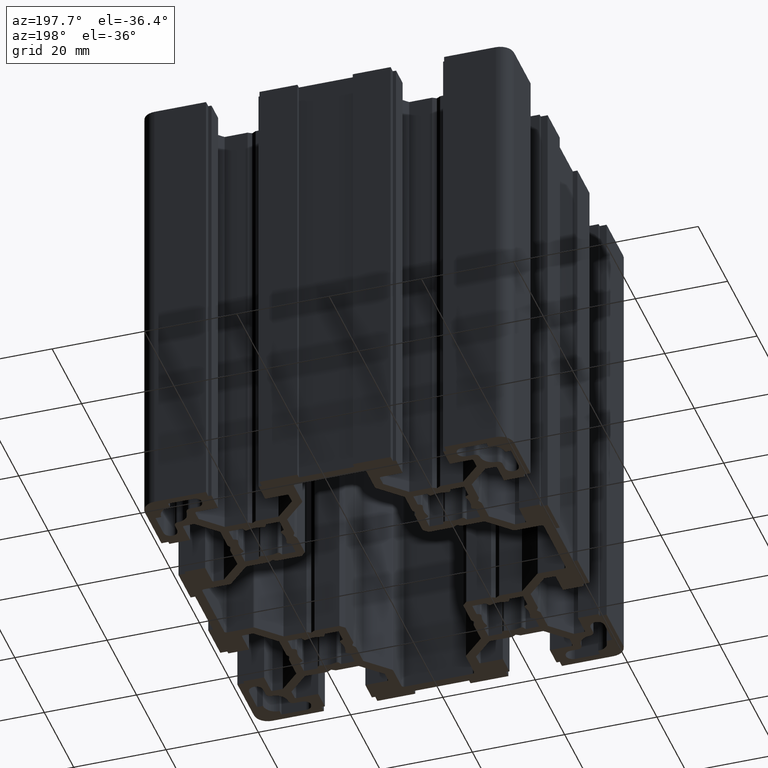
[diagram: clean part render]
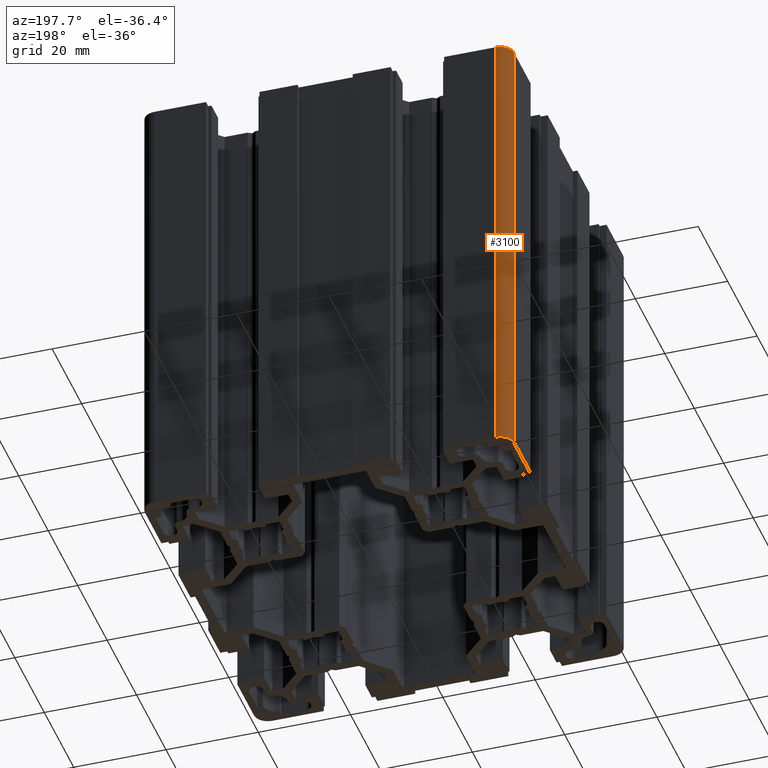
[diagram: same view with one face highlighted and labeled with its STEP entity id]
A machine part, auxiliary view. The second image highlights one B-rep face of the part: STEP entity #3100.
In plain terms, the highlighted cylindrical surface (edge-blend (fillet) strip) has radius 3 mm, axis along (-0, -0, -1).
Its self-contained STEP definition (entity closure, byte-faithful):
#406 = CARTESIAN_POINT ( 'NONE',  ( -36.99999974236035900, 37.00000000000000000, 0.0000000000000000000 ) ) ;
#412 = CIRCLE ( 'NONE', #416, 3.000000000000002700 ) ;
#416 = AXIS2_PLACEMENT_3D ( 'NONE', #406, #13815, #13779 ) ;
#1367 = CARTESIAN_POINT ( 'NONE',  ( -36.99999974236035900, 40.00000000000000000, 100.0000000000000000 ) ) ;
#1429 = DIRECTION ( 'NONE',  ( 1.000000000000000000, 0.0000000000000000000, 0.0000000000000000000 ) ) ;
#1430 = DIRECTION ( 'NONE',  ( 0.0000000000000000000, 0.0000000000000000000, 1.000000000000000000 ) ) ;
#1431 = CARTESIAN_POINT ( 'NONE',  ( -36.99999974236035900, 37.00000000000000000, 100.0000000000000000 ) ) ;
#1432 = AXIS2_PLACEMENT_3D ( 'NONE', #1431, #1430, #1429 ) ;
#1433 = CIRCLE ( 'NONE', #1432, 3.000000000000002700 ) ;
#1475 = CARTESIAN_POINT ( 'NONE',  ( -39.99999974236035900, 37.00000000000000000, 100.0000000000000000 ) ) ;
#2050 = CARTESIAN_POINT ( 'NONE',  ( -39.99999974236035900, 37.00000000000000000, 0.0000000000000000000 ) ) ;
#2103 = CARTESIAN_POINT ( 'NONE',  ( -36.99999974236035900, 40.00000000000000000, 0.0000000000000000000 ) ) ;
#3100 = ADVANCED_FACE ( 'NONE', ( #9279 ), #9256, .T. ) ;
#3101 = EDGE_CURVE ( 'NONE', #7077, #12295, #9305, .T. ) ;
#3103 = ORIENTED_EDGE ( 'NONE', *, *, #7124, .F. ) ;
#3105 = ORIENTED_EDGE ( 'NONE', *, *, #3101, .T. ) ;
#3111 = ORIENTED_EDGE ( 'NONE', *, *, #3119, .F. ) ;
#3117 = ORIENTED_EDGE ( 'NONE', *, *, #6583, .T. ) ;
#3119 = EDGE_CURVE ( 'NONE', #7135, #12275, #9337, .T. ) ;
#3132 = EDGE_LOOP ( 'NONE', ( #3117, #3111, #3103, #3105 ) ) ;
#6583 = EDGE_CURVE ( 'NONE', #12295, #12275, #412, .T. ) ;
#7077 = VERTEX_POINT ( 'NONE', #1367 ) ;
#7124 = EDGE_CURVE ( 'NONE', #7077, #7135, #1433, .T. ) ;
#7135 = VERTEX_POINT ( 'NONE', #1475 ) ;
#9256 = CYLINDRICAL_SURFACE ( 'NONE', #9262, 3.000000000000002700 ) ;
#9262 = AXIS2_PLACEMENT_3D ( 'NONE', #9309, #9308, #9307 ) ;
#9279 = FACE_OUTER_BOUND ( 'NONE', #3132, .T. ) ;
#9302 = DIRECTION ( 'NONE',  ( -0.0000000000000000000, -0.0000000000000000000, -1.000000000000000000 ) ) ;
#9303 = VECTOR ( 'NONE', #9302, 1000.000000000000000 ) ;
#9304 = CARTESIAN_POINT ( 'NONE',  ( -36.99999974236035900, 40.00000000000000000, 100.0000000000000000 ) ) ;
#9305 = LINE ( 'NONE', #9304, #9303 ) ;
#9307 = DIRECTION ( 'NONE',  ( -1.000000000000000000, 0.0000000000000000000, 0.0000000000000000000 ) ) ;
#9308 = DIRECTION ( 'NONE',  ( -0.0000000000000000000, -0.0000000000000000000, -1.000000000000000000 ) ) ;
#9309 = CARTESIAN_POINT ( 'NONE',  ( -36.99999974236035900, 37.00000000000000000, 100.0000000000000000 ) ) ;
#9334 = DIRECTION ( 'NONE',  ( -0.0000000000000000000, -0.0000000000000000000, -1.000000000000000000 ) ) ;
#9335 = VECTOR ( 'NONE', #9334, 1000.000000000000000 ) ;
#9336 = CARTESIAN_POINT ( 'NONE',  ( -39.99999974236035900, 37.00000000000000000, 100.0000000000000000 ) ) ;
#9337 = LINE ( 'NONE', #9336, #9335 ) ;
#12275 = VERTEX_POINT ( 'NONE', #2050 ) ;
#12295 = VERTEX_POINT ( 'NONE', #2103 ) ;
#13779 = DIRECTION ( 'NONE',  ( 1.000000000000000000, 0.0000000000000000000, 0.0000000000000000000 ) ) ;
#13815 = DIRECTION ( 'NONE',  ( 0.0000000000000000000, 0.0000000000000000000, 1.000000000000000000 ) ) ;